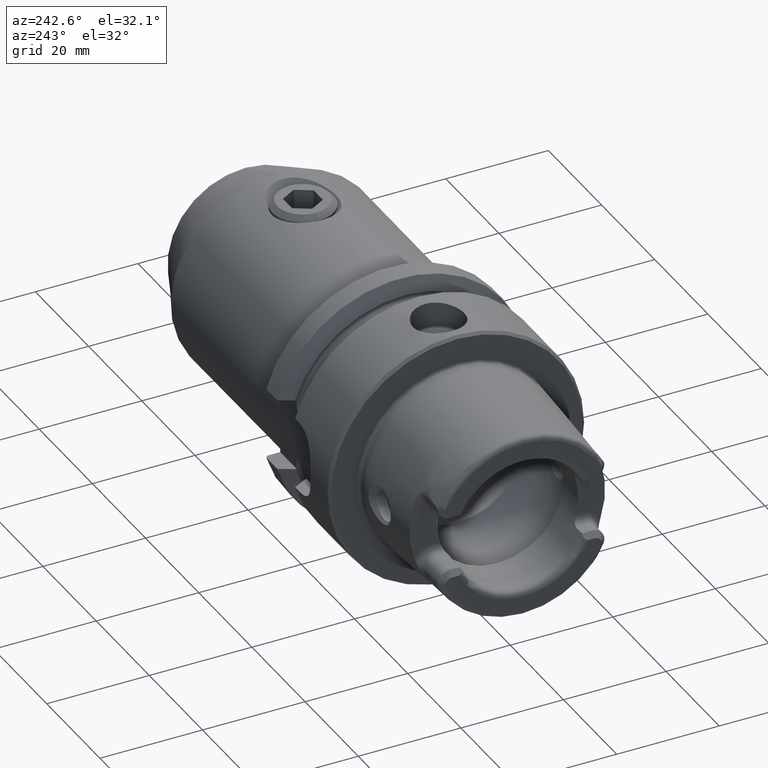
[diagram: clean part render]
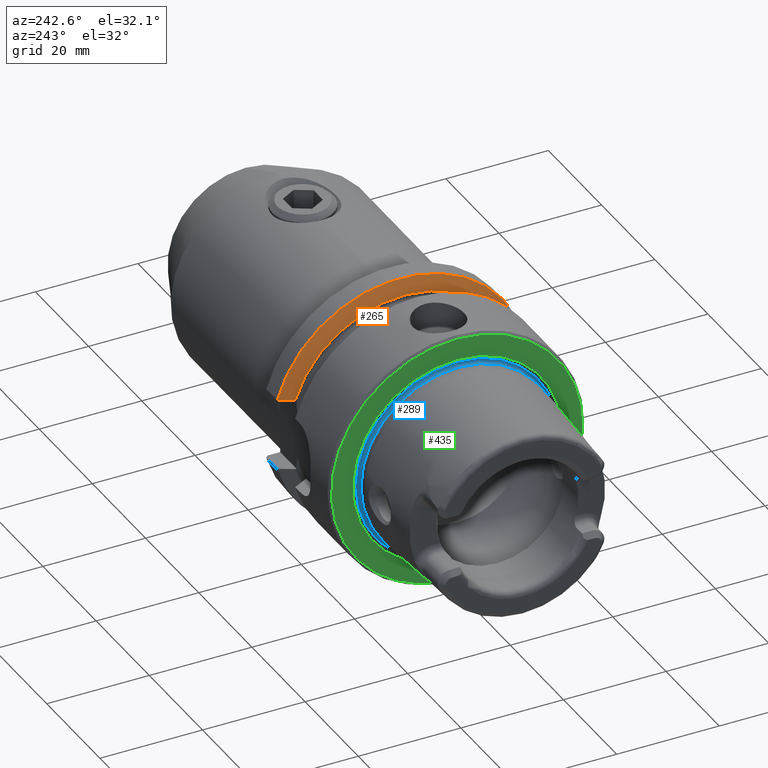
[diagram: same view with three faces highlighted in distinct colors, each labeled with its STEP entity id]
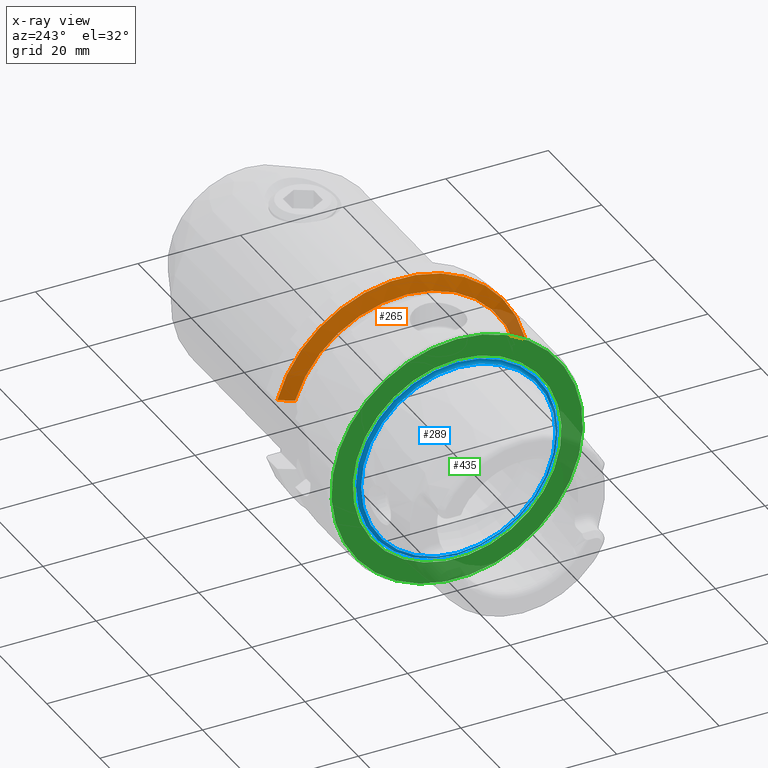
[diagram: x-ray of the same camera — body ghosted, the three highlighted faces saturated]
A machine part, auxiliary view with three faces highlighted in distinct colors.
The next image is the same camera in x-ray (body ghosted, the three faces saturated) — at least one of them is partly hidden behind the body in this view.
Their STEP definitions:

[orange] entity #265 — the highlighted conical surface has half-angle 60 deg.
#265 = ADVANCED_FACE( '', ( #652 ), #653, .T. );
#652 = FACE_OUTER_BOUND( '', #1179, .T. );
#653 = CONICAL_SURFACE( '', #1180, 25.0000000000000, 1.04719755119660 );
#1179 = EDGE_LOOP( '', ( #1920, #1921, #1922, #1923 ) );
#1180 = AXIS2_PLACEMENT_3D( '', #1924, #1925, #1926 );
#1920 = ORIENTED_EDGE( '', *, *, #3023, .T. );
#1921 = ORIENTED_EDGE( '', *, *, #3038, .T. );
#1922 = ORIENTED_EDGE( '', *, *, #3039, .F. );
#1923 = ORIENTED_EDGE( '', *, *, #3016, .F. );
#1924 = CARTESIAN_POINT( '', ( 21.3774990747593, 0.000000000000000, 0.000000000000000 ) );
#1925 = DIRECTION( '', ( 1.00000000000000, -0.000000000000000, 0.000000000000000 ) );
#1926 = DIRECTION( '', ( 0.000000000000000, 0.000000000000000, -1.00000000000000 ) );
#3016 = EDGE_CURVE( '', #3642, #3643, #3644, .T. );
#3023 = EDGE_CURVE( '', #3642, #3653, #3655, .T. );
#3038 = EDGE_CURVE( '', #3653, #3678, #3679, .T. );
#3039 = EDGE_CURVE( '', #3643, #3678, #3680, .T. );
#3642 = VERTEX_POINT( '', #5224 );
#3643 = VERTEX_POINT( '', #5225 );
#3644 = CIRCLE( '', #5226, 22.3975952641916 );
#3653 = VERTEX_POINT( '', #5240 );
#3655 = B_SPLINE_CURVE_WITH_KNOTS( '', 3, ( #5243, #5244, #5245, #5246 ), .UNSPECIFIED., .F., .F., ( 4, 4 ), ( 0.00482223397179263, 0.00790368548316152 ), .UNSPECIFIED. );
#3678 = VERTEX_POINT( '', #5302 );
#3679 = CIRCLE( '', #5303, 25.0000000000000 );
#3680 = B_SPLINE_CURVE_WITH_KNOTS( '', 3, ( #5304, #5305, #5306, #5307 ), .UNSPECIFIED., .F., .F., ( 4, 4 ), ( 0.00667923566644769, 0.00979038829736968 ), .UNSPECIFIED. );
#5224 = CARTESIAN_POINT( '', ( 19.8750000000000, -21.5789775851067, 6.00000000000000 ) );
#5225 = CARTESIAN_POINT( '', ( 19.8750000000000, 21.2756262802894, 7.00000000000000 ) );
#5226 = AXIS2_PLACEMENT_3D( '', #6300, #6301, #6302 );
#5240 = CARTESIAN_POINT( '', ( 21.3774990747593, -24.2693221990232, 6.00000000000000 ) );
#5243 = CARTESIAN_POINT( '', ( 19.8750000000000, -21.5789775851068, 6.00000000000000 ) );
#5244 = CARTESIAN_POINT( '', ( 20.3743044389733, -22.4766059815183, 6.00000000000000 ) );
#5245 = CARTESIAN_POINT( '', ( 20.8753002623556, -23.3733002052374, 6.00000000000000 ) );
#5246 = CARTESIAN_POINT( '', ( 21.3774990747593, -24.2693221990232, 6.00000000000000 ) );
#5302 = CARTESIAN_POINT( '', ( 21.3774990747593, 24.0000000000000, 7.00000000000000 ) );
#5303 = AXIS2_PLACEMENT_3D( '', #6323, #6324, #6325 );
#5304 = CARTESIAN_POINT( '', ( 19.8750000000000, 21.2756262802894, 7.00000000000000 ) );
#5305 = CARTESIAN_POINT( '', ( 20.3736902862350, 22.1849333666780, 7.00000000000000 ) );
#5306 = CARTESIAN_POINT( '', ( 20.8747534605982, 23.0929365135318, 7.00000000000000 ) );
#5307 = CARTESIAN_POINT( '', ( 21.3774990747593, 24.0000000000000, 7.00000000000000 ) );
#6300 = CARTESIAN_POINT( '', ( 19.8750000000000, 0.000000000000000, 0.000000000000000 ) );
#6301 = DIRECTION( '', ( -1.00000000000000, 0.000000000000000, 0.000000000000000 ) );
#6302 = DIRECTION( '', ( 0.000000000000000, 0.000000000000000, 1.00000000000000 ) );
#6323 = CARTESIAN_POINT( '', ( 21.3774990747593, 0.000000000000000, 0.000000000000000 ) );
#6324 = DIRECTION( '', ( -1.00000000000000, 0.000000000000000, 0.000000000000000 ) );
#6325 = DIRECTION( '', ( 0.000000000000000, 0.000000000000000, 1.00000000000000 ) );

[blue] entity #289 — the highlighted toroidal blend (fillet) surface has major radius 19.6045 mm and minor (blend) radius 0.6 mm.
#289 = ADVANCED_FACE( '', ( #693, #694 ), #695, .F. );
#693 = FACE_OUTER_BOUND( '', #1220, .T. );
#694 = FACE_OUTER_BOUND( '', #1221, .T. );
#695 = TOROIDAL_SURFACE( '', #1222, 19.6044997264100, 0.600000000000000 );
#1220 = EDGE_LOOP( '', ( #2012 ) );
#1221 = EDGE_LOOP( '', ( #2013 ) );
#1222 = AXIS2_PLACEMENT_3D( '', #2014, #2015, #2016 );
#2012 = ORIENTED_EDGE( '', *, *, #2911, .F. );
#2013 = ORIENTED_EDGE( '', *, *, #2852, .T. );
#2014 = CARTESIAN_POINT( '', ( -0.500491312426932, 0.000000000000000, 0.000000000000000 ) );
#2015 = DIRECTION( '', ( -1.00000000000000, 0.000000000000000, 0.000000000000000 ) );
#2016 = DIRECTION( '', ( 0.000000000000000, 0.000000000000000, 1.00000000000000 ) );
#2852 = EDGE_CURVE( '', #3359, #3359, #3360, .T. );
#2911 = EDGE_CURVE( '', #3463, #3463, #3464, .T. );
#3359 = VERTEX_POINT( '', #4226 );
#3360 = CIRCLE( '', #4227, 19.6880035869860 );
#3463 = VERTEX_POINT( '', #4519 );
#3464 = CIRCLE( '', #4520, 19.0044997264100 );
#4226 = CARTESIAN_POINT( '', ( 0.0936695288180078, 0.000000000000000, 19.6880035869860 ) );
#4227 = AXIS2_PLACEMENT_3D( '', #6117, #6118, #6119 );
#4519 = CARTESIAN_POINT( '', ( -0.500491312426930, 0.000000000000000, 19.0044997264100 ) );
#4520 = AXIS2_PLACEMENT_3D( '', #6187, #6188, #6189 );
#6117 = CARTESIAN_POINT( '', ( 0.0936695288180078, 0.000000000000000, 0.000000000000000 ) );
#6118 = DIRECTION( '', ( -1.00000000000000, 0.000000000000000, 0.000000000000000 ) );
#6119 = DIRECTION( '', ( 0.000000000000000, 0.000000000000000, 1.00000000000000 ) );
#6187 = CARTESIAN_POINT( '', ( -0.500491312426930, 0.000000000000000, 0.000000000000000 ) );
#6188 = DIRECTION( '', ( -1.00000000000000, 0.000000000000000, 0.000000000000000 ) );
#6189 = DIRECTION( '', ( 0.000000000000000, 0.000000000000000, 1.00000000000000 ) );

[green] entity #435 — the highlighted planar face has unit normal (1, 0, 0).
#435 = ADVANCED_FACE( '', ( #937, #938 ), #939, .F. );
#937 = FACE_BOUND( '', #1464, .T. );
#938 = FACE_OUTER_BOUND( '', #1465, .T. );
#939 = PLANE( '', #1466 );
#1464 = EDGE_LOOP( '', ( #2613 ) );
#1465 = EDGE_LOOP( '', ( #2614 ) );
#1466 = AXIS2_PLACEMENT_3D( '', #2615, #2616, #2617 );
#2613 = ORIENTED_EDGE( '', *, *, #2853, .F. );
#2614 = ORIENTED_EDGE( '', *, *, #3271, .T. );
#2615 = CARTESIAN_POINT( '', ( -3.94942588234970E-007, 0.000000000000000, 24.5000000000000 ) );
#2616 = DIRECTION( '', ( 1.00000000000000, 0.000000000000000, 0.000000000000000 ) );
#2617 = DIRECTION( '', ( 0.000000000000000, 0.000000000000000, -1.00000000000000 ) );
#2853 = EDGE_CURVE( '', #3361, #3361, #3362, .T. );
#3271 = EDGE_CURVE( '', #3986, #3986, #3987, .T. );
#3361 = VERTEX_POINT( '', #4228 );
#3362 = CIRCLE( '', #4229, 20.3544997264100 );
#3986 = VERTEX_POINT( '', #6032 );
#3987 = CIRCLE( '', #6033, 24.5000000000000 );
#4228 = CARTESIAN_POINT( '', ( -3.94942557824240E-007, 0.000000000000000, 20.3544997264100 ) );
#4229 = AXIS2_PLACEMENT_3D( '', #6120, #6121, #6122 );
#6032 = CARTESIAN_POINT( '', ( -3.94942620274286E-007, 0.000000000000000, 24.5000000000000 ) );
#6033 = AXIS2_PLACEMENT_3D( '', #6547, #6548, #6549 );
#6120 = CARTESIAN_POINT( '', ( -3.94942557824240E-007, 0.000000000000000, 0.000000000000000 ) );
#6121 = DIRECTION( '', ( -1.00000000000000, 0.000000000000000, 0.000000000000000 ) );
#6122 = DIRECTION( '', ( 0.000000000000000, 0.000000000000000, 1.00000000000000 ) );
#6547 = CARTESIAN_POINT( '', ( -3.94942620274286E-007, 0.000000000000000, 0.000000000000000 ) );
#6548 = DIRECTION( '', ( -1.00000000000000, 0.000000000000000, 0.000000000000000 ) );
#6549 = DIRECTION( '', ( 0.000000000000000, 0.000000000000000, 1.00000000000000 ) );